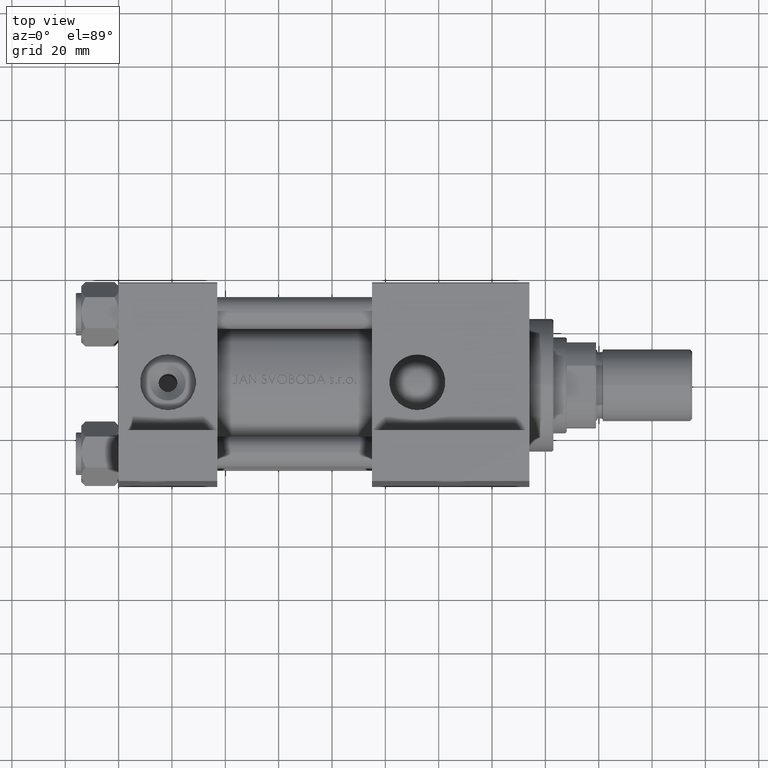
[diagram: clean part render]
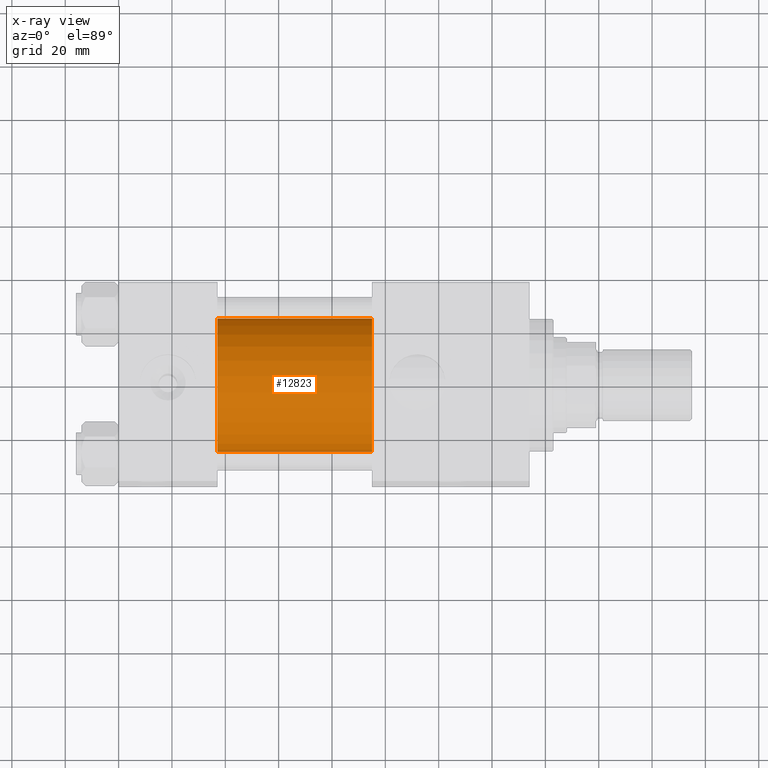
[diagram: x-ray — body ghosted, one internal face saturated and labeled with its STEP entity id]
A machine part, top view, then the same camera in x-ray: the body is ghosted and one INTERNAL B-rep face — a face not visible from any outside direction — is saturated and labeled: STEP entity #12823.
In plain terms, the highlighted cylindrical surface (partial cylindrical patch) has radius 25 mm, axis along (-1, -0, 0).
Its self-contained STEP definition (entity closure, byte-faithful):
#67 = VERTEX_POINT ( 'NONE', #46143 ) ;
#903 = EDGE_CURVE ( 'NONE', #20146, #34277, #21608, .T. ) ;
#2083 = CARTESIAN_POINT ( 'NONE',  ( 95.00000000000000000, 0.000000000000000000, -0.5000000000000004441 ) ) ;
#4329 = AXIS2_PLACEMENT_3D ( 'NONE', #44196, #43450, #31790 ) ;
#4858 = CARTESIAN_POINT ( 'NONE',  ( 37.00000000000000000, 0.000000000000000000, 24.50000000000000000 ) ) ;
#5507 = CYLINDRICAL_SURFACE ( 'NONE', #4329, 25.00000000000000000 ) ;
#6457 = CARTESIAN_POINT ( 'NONE',  ( 95.00000000000000000, 0.000000000000000000, 24.50000000000000000 ) ) ;
#7064 = VECTOR ( 'NONE', #17616, 1000.000000000000000 ) ;
#7796 = DIRECTION ( 'NONE',  ( 1.000000000000000000, 0.000000000000000000, 0.000000000000000000 ) ) ;
#8636 = CIRCLE ( 'NONE', #24799, 25.00000000000000000 ) ;
#9032 = EDGE_LOOP ( 'NONE', ( #40238, #24591, #38033, #13941 ) ) ;
#10303 = LINE ( 'NONE', #45213, #7064 ) ;
#12823 = ADVANCED_FACE ( 'NONE', ( #24706 ), #5507, .F. ) ;
#13744 = AXIS2_PLACEMENT_3D ( 'NONE', #2083, #17975, #13936 ) ;
#13880 = CARTESIAN_POINT ( 'NONE',  ( 37.00000000000000000, 3.061616997868382254E-15, -25.50000000000000355 ) ) ;
#13936 = DIRECTION ( 'NONE',  ( 0.000000000000000000, 0.000000000000000000, -1.000000000000000000 ) ) ;
#13941 = ORIENTED_EDGE ( 'NONE', *, *, #903, .F. ) ;
#14513 = DIRECTION ( 'NONE',  ( -1.000000000000000000, -0.000000000000000000, -0.000000000000000000 ) ) ;
#16951 = VECTOR ( 'NONE', #14513, 1000.000000000000000 ) ;
#17616 = DIRECTION ( 'NONE',  ( -1.000000000000000000, -0.000000000000000000, -0.000000000000000000 ) ) ;
#17975 = DIRECTION ( 'NONE',  ( 1.000000000000000000, 0.000000000000000000, 0.000000000000000000 ) ) ;
#20146 = VERTEX_POINT ( 'NONE', #35676 ) ;
#21608 = LINE ( 'NONE', #6457, #16951 ) ;
#22945 = DIRECTION ( 'NONE',  ( 0.000000000000000000, 0.000000000000000000, -1.000000000000000000 ) ) ;
#24591 = ORIENTED_EDGE ( 'NONE', *, *, #38948, .T. ) ;
#24706 = FACE_OUTER_BOUND ( 'NONE', #9032, .T. ) ;
#24799 = AXIS2_PLACEMENT_3D ( 'NONE', #33845, #7796, #22945 ) ;
#30165 = VERTEX_POINT ( 'NONE', #13880 ) ;
#31790 = DIRECTION ( 'NONE',  ( 0.000000000000000000, 0.000000000000000000, 1.000000000000000000 ) ) ;
#33845 = CARTESIAN_POINT ( 'NONE',  ( 37.00000000000000000, 0.000000000000000000, -0.5000000000000004441 ) ) ;
#34277 = VERTEX_POINT ( 'NONE', #4858 ) ;
#35676 = CARTESIAN_POINT ( 'NONE',  ( 95.00000000000000000, 0.000000000000000000, 24.50000000000000000 ) ) ;
#37633 = EDGE_CURVE ( 'NONE', #34277, #30165, #8636, .T. ) ;
#38033 = ORIENTED_EDGE ( 'NONE', *, *, #37633, .F. ) ;
#38948 = EDGE_CURVE ( 'NONE', #67, #30165, #10303, .T. ) ;
#39631 = CIRCLE ( 'NONE', #13744, 25.00000000000000000 ) ;
#40238 = ORIENTED_EDGE ( 'NONE', *, *, #43233, .T. ) ;
#43233 = EDGE_CURVE ( 'NONE', #20146, #67, #39631, .T. ) ;
#43450 = DIRECTION ( 'NONE',  ( -1.000000000000000000, -0.000000000000000000, -0.000000000000000000 ) ) ;
#44196 = CARTESIAN_POINT ( 'NONE',  ( 95.00000000000000000, 0.000000000000000000, -0.5000000000000004441 ) ) ;
#45213 = CARTESIAN_POINT ( 'NONE',  ( 95.00000000000000000, 3.061616997868382254E-15, -25.50000000000000355 ) ) ;
#46143 = CARTESIAN_POINT ( 'NONE',  ( 95.00000000000000000, 3.061616997868382254E-15, -25.50000000000000355 ) ) ;